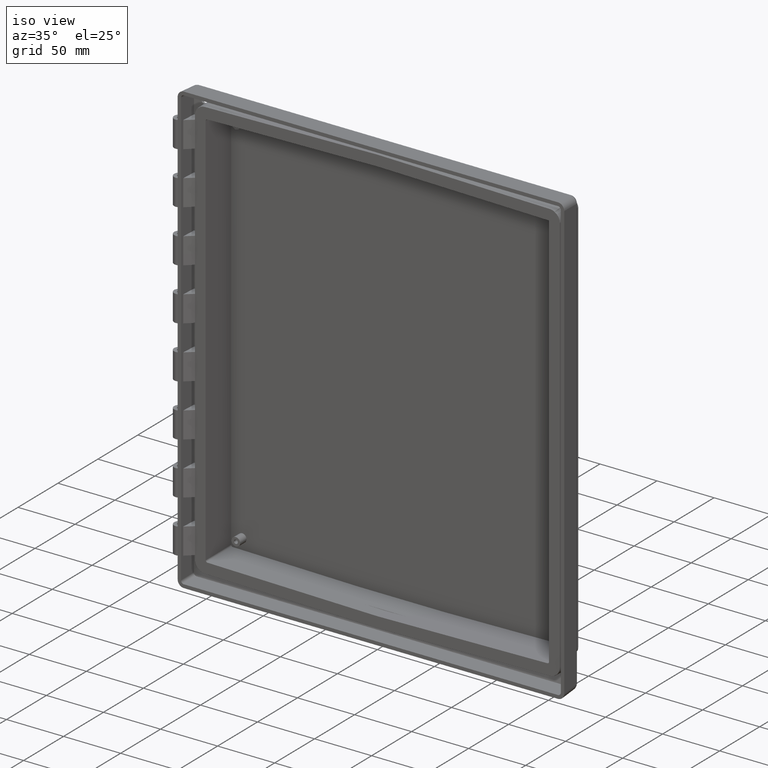
[diagram: clean part render]
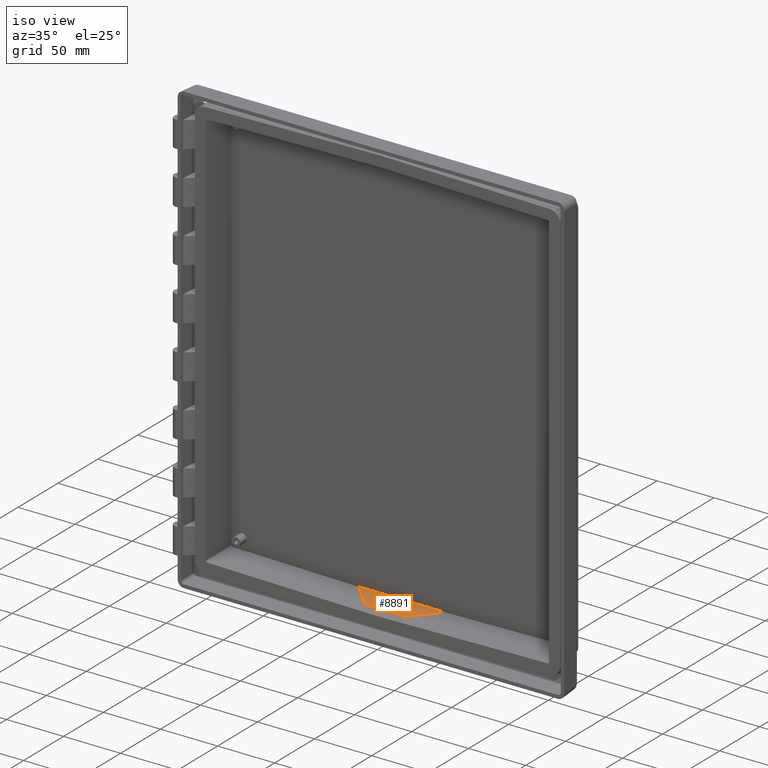
[diagram: same view with one face highlighted and labeled with its STEP entity id]
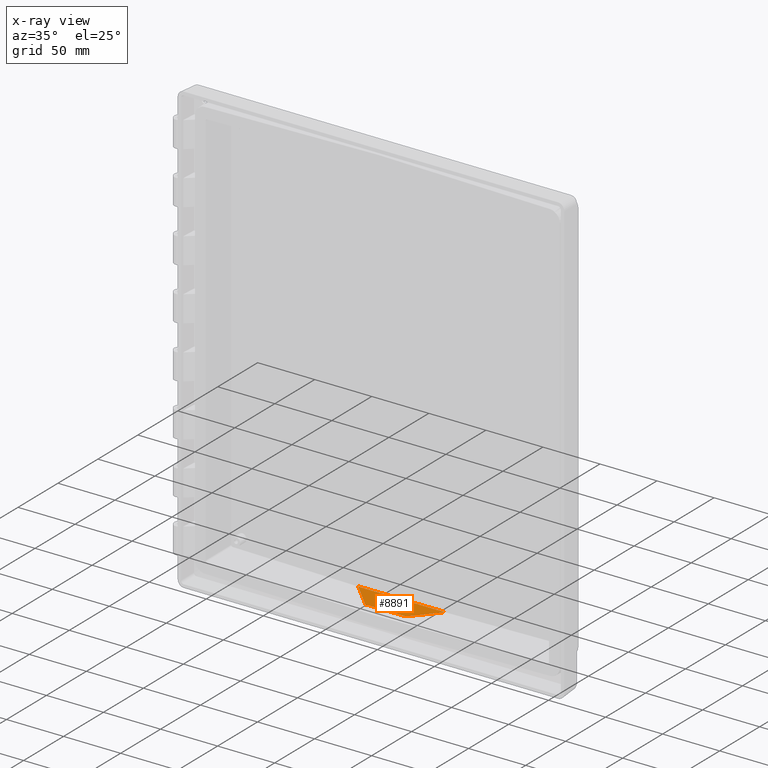
[diagram: x-ray of the same camera — body ghosted, the highlighted face saturated]
A machine part, iso view. The second image highlights one B-rep face of the part: STEP entity #8891.
The next image is the same camera in x-ray: the body ghosted, the highlighted face saturated — about 0% of this face is hidden behind the body in this view.
In plain terms, the highlighted planar face has unit normal (0, 0.0523, -0.9986).
Its self-contained STEP definition (entity closure, byte-faithful):
#3038 = CARTESIAN_POINT ( 'NONE',  ( 3.752911288988565200, -3.755195458739436700, -178.1919982437735800 ) ) ;
#3048 = LINE ( 'NONE', #3038, #5384 ) ;
#3056 = DIRECTION ( 'NONE',  ( -0.7071608033720852000, 0.7060837636462216100, 0.03700428204051029600 ) ) ;
#3058 = VECTOR ( 'NONE', #3056, 1000.000000000000000 ) ;
#3060 = CARTESIAN_POINT ( 'NONE',  ( -79.06491484031374700, 71.44210430912893600, -174.2510747548584200 ) ) ;
#3062 = LINE ( 'NONE', #3060, #3058 ) ;
#3064 = CARTESIAN_POINT ( 'NONE',  ( -17.83494238285134200, 10.30538802824761800, -177.4551142877967900 ) ) ;
#3065 = DIRECTION ( 'NONE',  ( 1.000000000000000000, 0.0000000000000000000, 0.0000000000000000000 ) ) ;
#3067 = VECTOR ( 'NONE', #3065, 1000.000000000000000 ) ;
#3069 = CARTESIAN_POINT ( 'NONE',  ( -155.0000000000000600, 10.30538802824762000, -177.4551142877967900 ) ) ;
#3077 = LINE ( 'NONE', #3069, #3067 ) ;
#3153 = CARTESIAN_POINT ( 'NONE',  ( 17.83494238276964300, 10.30538802824762000, -177.4551142877967900 ) ) ;
#3171 = DIRECTION ( 'NONE',  ( 0.0000000000000000000, 0.9986295347545739400, 0.05233595624294395300 ) ) ;
#3172 = DIRECTION ( 'NONE',  ( 0.0000000000000000000, 0.05233595624294395300, -0.9986295347545739400 ) ) ;
#3174 = AXIS2_PLACEMENT_3D ( 'NONE', #3178, #3172, #3171 ) ;
#3178 = CARTESIAN_POINT ( 'NONE',  ( -155.0000000000000600, -0.1831758468503038300, -178.0047966283590000 ) ) ;
#3180 = PLANE ( 'NONE',  #3174 ) ;
#3187 = FACE_OUTER_BOUND ( 'NONE', #8892, .T. ) ;
#5382 = DIRECTION ( 'NONE',  ( -0.7071608033720852000, -0.7060837636462216100, -0.03700428204051029600 ) ) ;
#5384 = VECTOR ( 'NONE', #5382, 1000.000000000000000 ) ;
#8107 = CARTESIAN_POINT ( 'NONE',  ( 37.96020609379390000, 30.40000000000000900, -176.4020002988028200 ) ) ;
#8108 = DIRECTION ( 'NONE',  ( 1.000000000000000000, -0.0000000000000000000, -0.0000000000000000000 ) ) ;
#8109 = VECTOR ( 'NONE', #8108, 1000.000000000000000 ) ;
#8110 = CARTESIAN_POINT ( 'NONE',  ( -155.0000000000000000, 30.40000000000000200, -176.4020002988028200 ) ) ;
#8111 = LINE ( 'NONE', #8110, #8109 ) ;
#8112 = CARTESIAN_POINT ( 'NONE',  ( -37.96020609379383600, 30.39999999999999900, -176.4020002988028200 ) ) ;
#8835 = EDGE_CURVE ( 'NONE', #8836, #8846, #3077, .T. ) ;
#8836 = VERTEX_POINT ( 'NONE', #3064 ) ;
#8838 = EDGE_CURVE ( 'NONE', #8836, #9819, #3062, .T. ) ;
#8845 = EDGE_CURVE ( 'NONE', #9822, #8846, #3048, .T. ) ;
#8846 = VERTEX_POINT ( 'NONE', #3153 ) ;
#8891 = ADVANCED_FACE ( 'NONE', ( #3187 ), #3180, .F. ) ;
#8892 = EDGE_LOOP ( 'NONE', ( #8893, #8894, #8895, #8896 ) ) ;
#8893 = ORIENTED_EDGE ( 'NONE', *, *, #9821, .F. ) ;
#8894 = ORIENTED_EDGE ( 'NONE', *, *, #8838, .F. ) ;
#8895 = ORIENTED_EDGE ( 'NONE', *, *, #8835, .T. ) ;
#8896 = ORIENTED_EDGE ( 'NONE', *, *, #8845, .F. ) ;
#9819 = VERTEX_POINT ( 'NONE', #8112 ) ;
#9821 = EDGE_CURVE ( 'NONE', #9819, #9822, #8111, .T. ) ;
#9822 = VERTEX_POINT ( 'NONE', #8107 ) ;